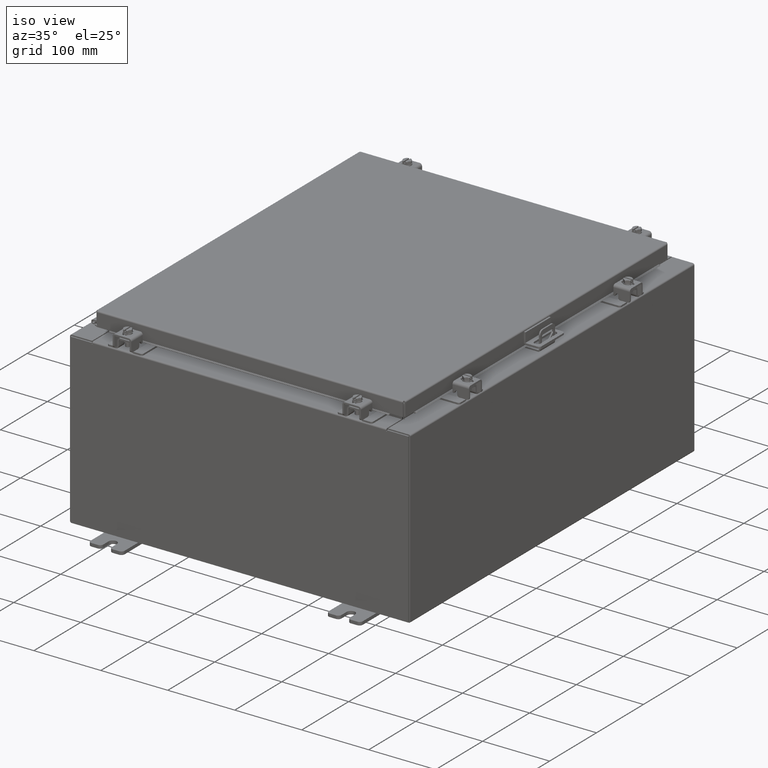
[diagram: clean part render]
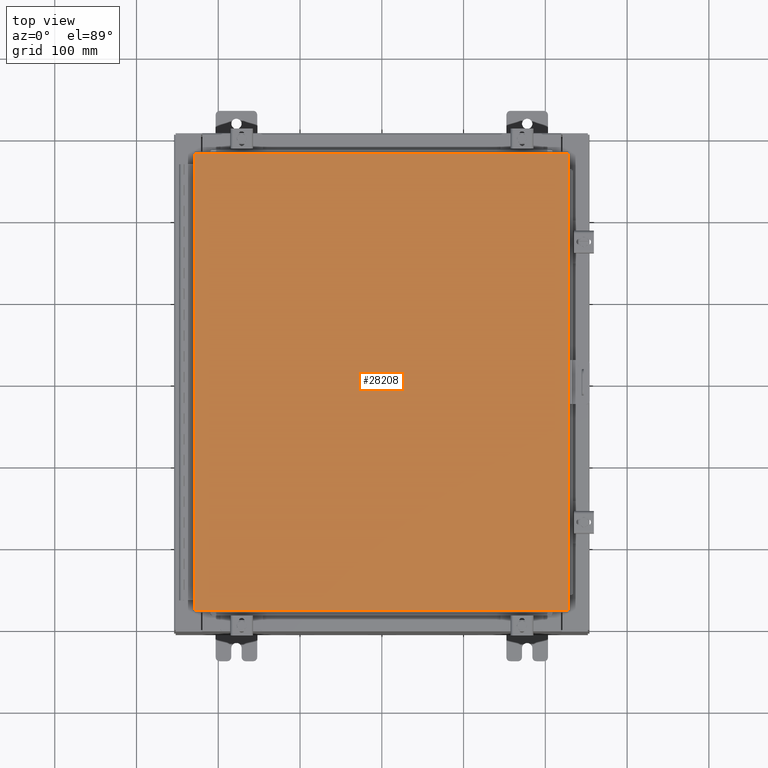
[diagram: tour spotlight — one face highlighted and labeled with its STEP entity id]
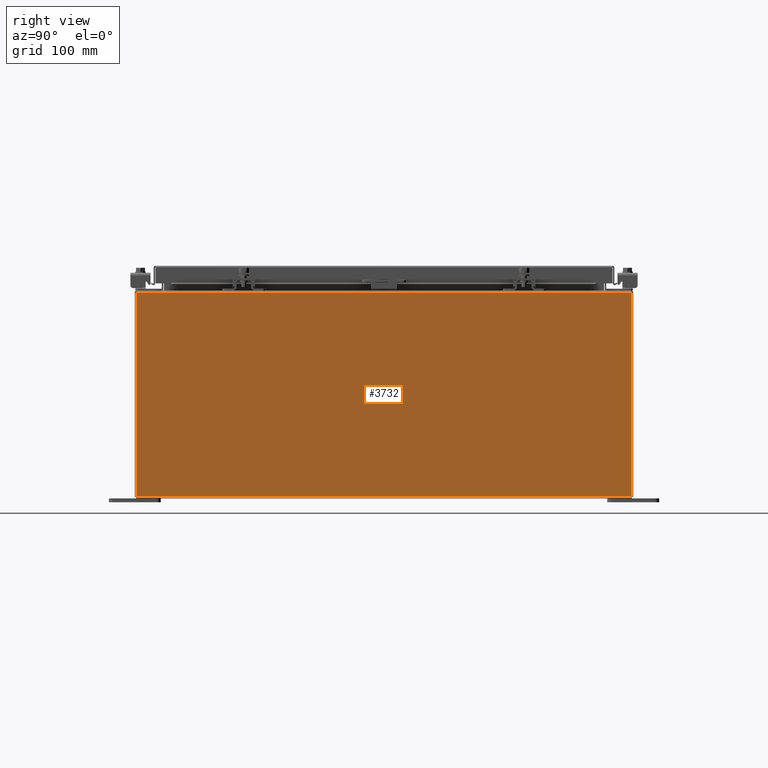
[diagram: tour spotlight — one face highlighted and labeled with its STEP entity id]
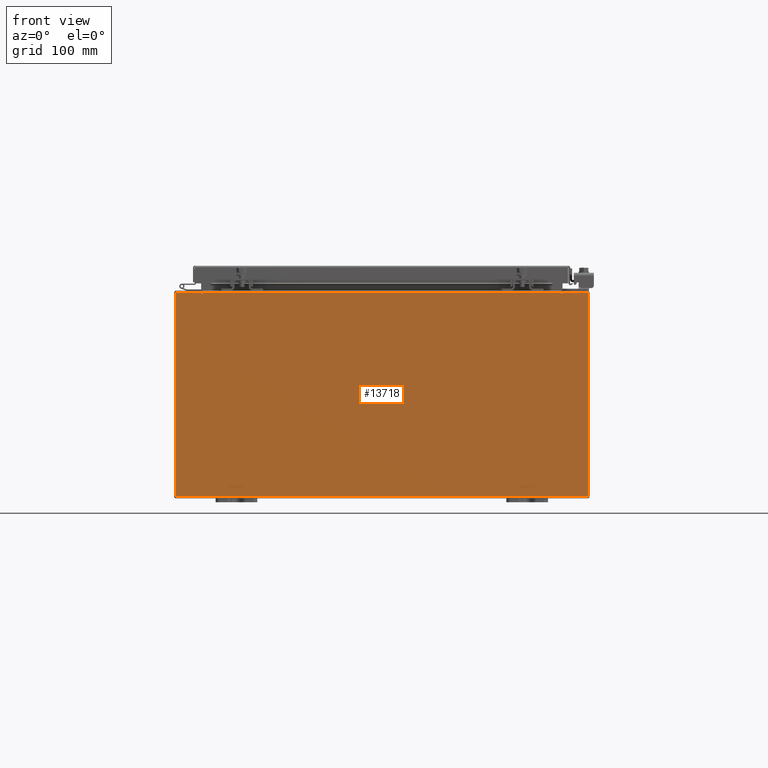
[diagram: tour spotlight — one face highlighted and labeled with its STEP entity id]
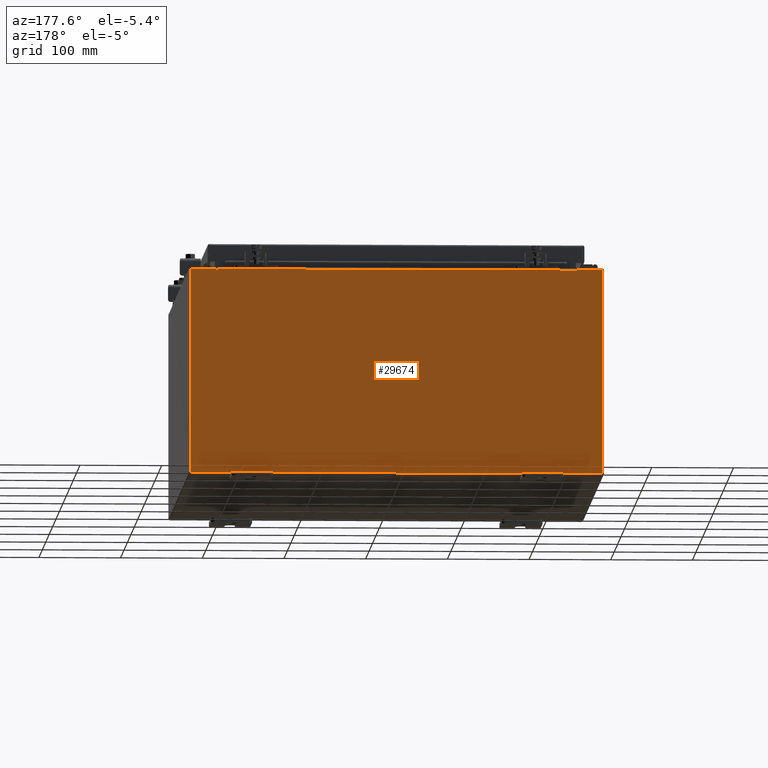
[diagram: tour spotlight — one face highlighted and labeled with its STEP entity id]
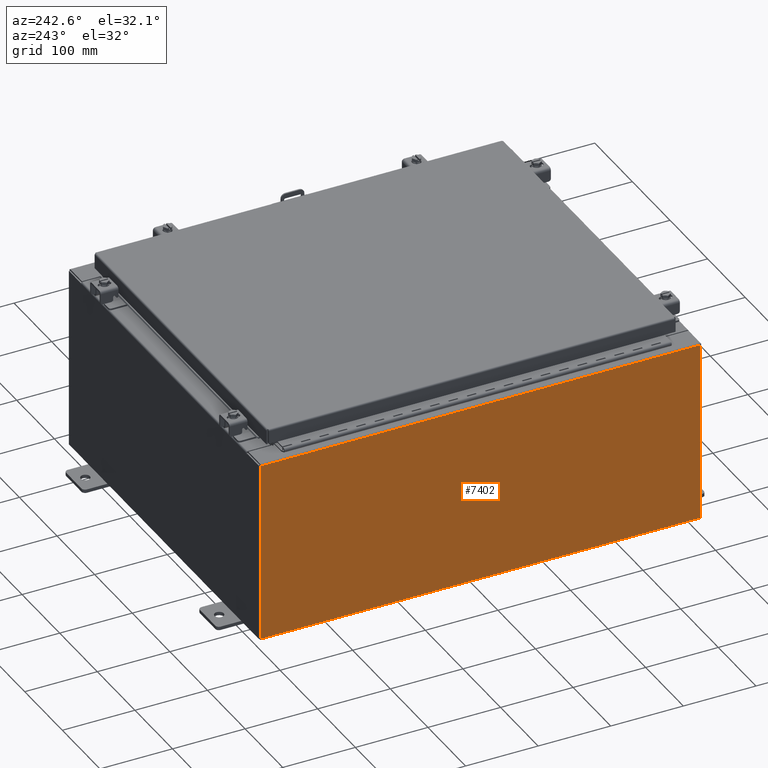
[diagram: tour spotlight — one face highlighted and labeled with its STEP entity id]
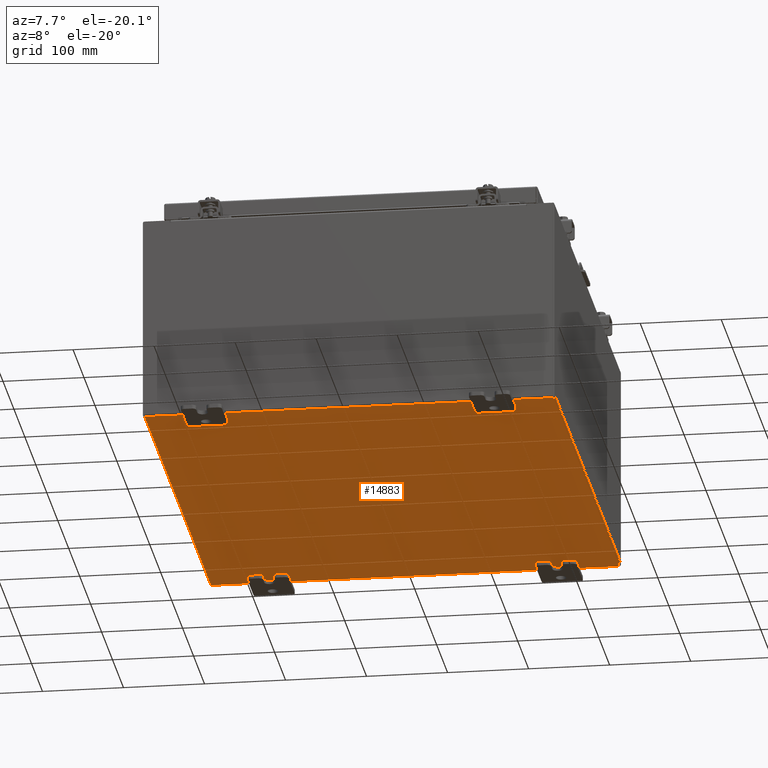
[diagram: tour spotlight — one face highlighted and labeled with its STEP entity id]
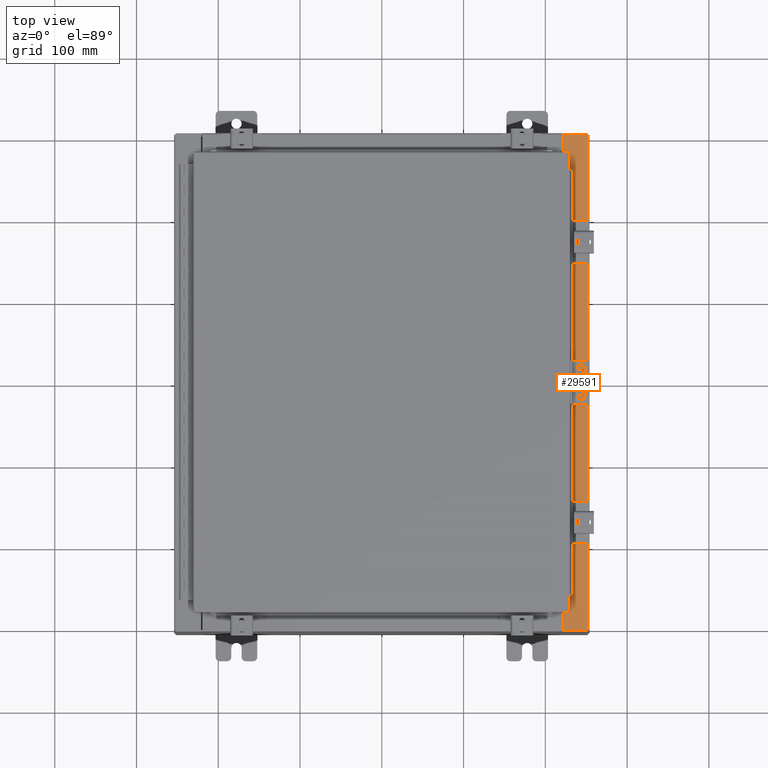
[diagram: tour spotlight — one face highlighted and labeled with its STEP entity id]
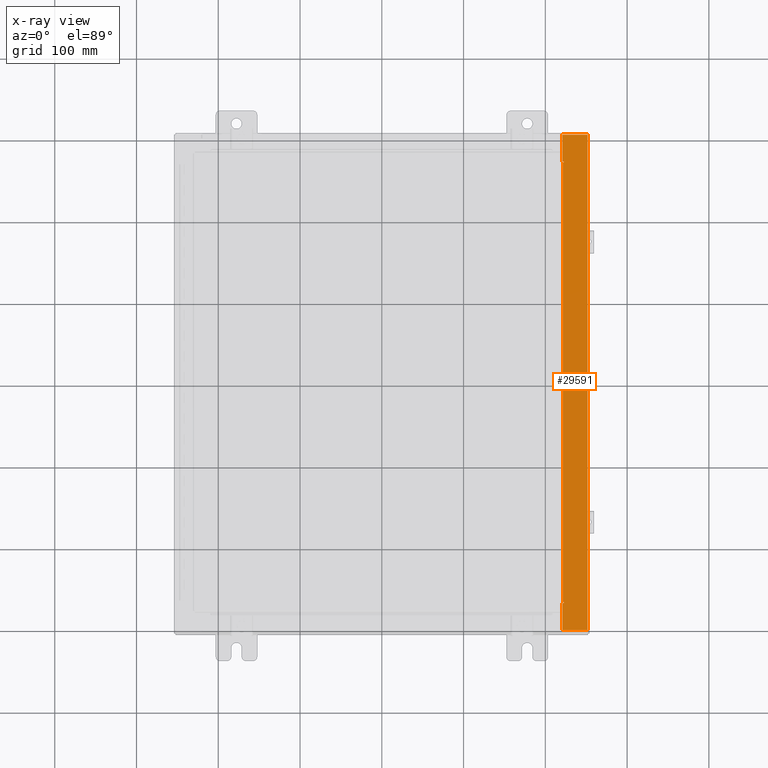
[diagram: x-ray of the same camera — body ghosted, this tour face saturated]
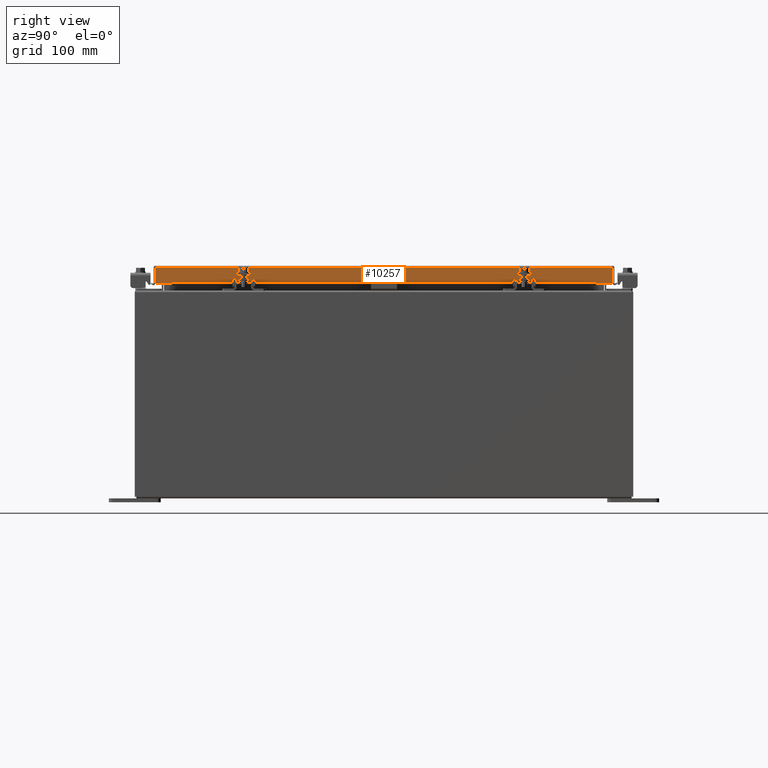
[diagram: tour spotlight — one face highlighted and labeled with its STEP entity id]
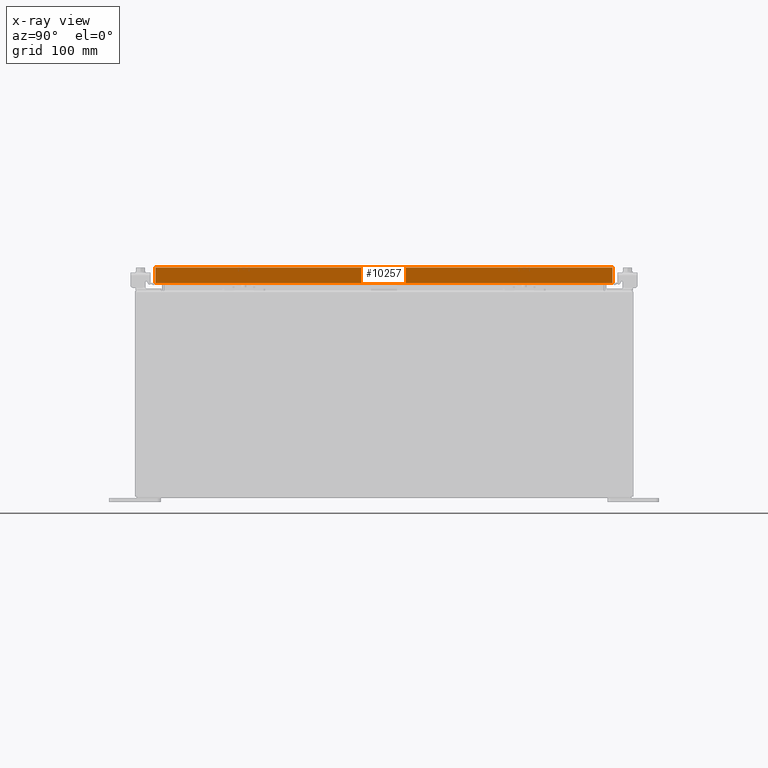
[diagram: x-ray of the same camera — body ghosted, this tour face saturated]
A machine part: a face-by-face anatomy tour. The part has 1735 B-rep faces; the first image is the clean iso view, then the 8 largest visible faces are spotlighted one at a time (largest first), each with its STEP entity span.

Face 1 — top view, entity #28208. In plain terms, the highlighted planar face has unit normal (0, 0, -1).
Definition (entity closure, byte-faithful):
#773 = CARTESIAN_POINT ( 'NONE',  ( 0.0000000000000000000, 0.0000000000000000000, 0.0000000000000000000 ) ) ;
#895 = EDGE_CURVE ( 'NONE', #29406, #4775, #2001, .T. ) ;
#949 = LINE ( 'NONE', #12635, #19670 ) ;
#988 = DIRECTION ( 'NONE',  ( 0.0000000000000000000, -1.000000000000000000, 0.0000000000000000000 ) ) ;
#2001 = LINE ( 'NONE', #29381, #28297 ) ;
#2133 = VERTEX_POINT ( 'NONE', #15925 ) ;
#2483 = DIRECTION ( 'NONE',  ( 1.000000000000000000, -0.0000000000000000000, -0.0000000000000000000 ) ) ;
#2542 = CARTESIAN_POINT ( 'NONE',  ( 8.990299999999999500, 11.00630000000000000, 0.0000000000000000000 ) ) ;
#3321 = PLANE ( 'NONE',  #28322 ) ;
#4775 = VERTEX_POINT ( 'NONE', #26533 ) ;
#5117 = VECTOR ( 'NONE', #8028, 39.37007874015748100 ) ;
#8028 = DIRECTION ( 'NONE',  ( 0.0000000000000000000, 1.000000000000000000, 0.0000000000000000000 ) ) ;
#8452 = DIRECTION ( 'NONE',  ( -1.000000000000000000, 0.0000000000000000000, -0.0000000000000000000 ) ) ;
#9262 = FACE_OUTER_BOUND ( 'NONE', #22044, .T. ) ;
#11309 = VECTOR ( 'NONE', #988, 39.37007874015748100 ) ;
#12635 = CARTESIAN_POINT ( 'NONE',  ( -8.990300000000001300, -11.00630000000000100, 0.0000000000000000000 ) ) ;
#12837 = EDGE_CURVE ( 'NONE', #2133, #29406, #25385, .T. ) ;
#13142 = CARTESIAN_POINT ( 'NONE',  ( 8.990299999999997700, -11.00630000000000000, 0.0000000000000000000 ) ) ;
#15925 = CARTESIAN_POINT ( 'NONE',  ( 8.990299999999997700, -11.00630000000000000, 0.0000000000000000000 ) ) ;
#18603 = VERTEX_POINT ( 'NONE', #18774 ) ;
#18663 = ORIENTED_EDGE ( 'NONE', *, *, #895, .T. ) ;
#18774 = CARTESIAN_POINT ( 'NONE',  ( -8.990300000000001300, -11.00630000000000100, 0.0000000000000000000 ) ) ;
#19277 = DIRECTION ( 'NONE',  ( -1.000000000000000000, -0.0000000000000000000, -0.0000000000000000000 ) ) ;
#19670 = VECTOR ( 'NONE', #2483, 39.37007874015748100 ) ;
#22044 = EDGE_LOOP ( 'NONE', ( #29290, #30253, #18663, #29386 ) ) ;
#23652 = DIRECTION ( 'NONE',  ( 0.0000000000000000000, 0.0000000000000000000, -1.000000000000000000 ) ) ;
#25371 = EDGE_CURVE ( 'NONE', #4775, #18603, #31582, .T. ) ;
#25385 = LINE ( 'NONE', #13142, #5117 ) ;
#26533 = CARTESIAN_POINT ( 'NONE',  ( -8.990299999999999500, 11.00630000000000100, 0.0000000000000000000 ) ) ;
#27301 = EDGE_CURVE ( 'NONE', #18603, #2133, #949, .T. ) ;
#28208 = ADVANCED_FACE ( 'NONE', ( #9262 ), #3321, .F. ) ;
#28297 = VECTOR ( 'NONE', #19277, 39.37007874015748100 ) ;
#28322 = AXIS2_PLACEMENT_3D ( 'NONE', #773, #23652, #8452 ) ;
#29290 = ORIENTED_EDGE ( 'NONE', *, *, #27301, .T. ) ;
#29381 = CARTESIAN_POINT ( 'NONE',  ( 8.990299999999999500, 11.00630000000000000, 0.0000000000000000000 ) ) ;
#29386 = ORIENTED_EDGE ( 'NONE', *, *, #25371, .T. ) ;
#29406 = VERTEX_POINT ( 'NONE', #2542 ) ;
#30253 = ORIENTED_EDGE ( 'NONE', *, *, #12837, .T. ) ;
#31452 = CARTESIAN_POINT ( 'NONE',  ( -8.990299999999999500, 11.00630000000000100, 0.0000000000000000000 ) ) ;
#31582 = LINE ( 'NONE', #31452, #11309 ) ;

Face 2 — right view, entity #3732. In plain terms, the highlighted planar face has unit normal (-1, 0, 0).
Definition (entity closure, byte-faithful):
#248 = CARTESIAN_POINT ( 'NONE',  ( 10.00000000000000000, -11.92530000000000000, 0.01299999999999985200 ) ) ;
#268 = VERTEX_POINT ( 'NONE', #18538 ) ;
#307 = LINE ( 'NONE', #16779, #6291 ) ;
#2139 = VERTEX_POINT ( 'NONE', #3215 ) ;
#2440 = ORIENTED_EDGE ( 'NONE', *, *, #23177, .F. ) ;
#3215 = CARTESIAN_POINT ( 'NONE',  ( 10.00000000000000000, -11.92530000000000000, 0.01299999999999984300 ) ) ;
#3670 = DIRECTION ( 'NONE',  ( 3.523082860860888200E-015, -2.201926788038055100E-016, 1.000000000000000000 ) ) ;
#3732 = ADVANCED_FACE ( 'NONE', ( #25437 ), #11811, .F. ) ;
#4240 = DIRECTION ( 'NONE',  ( -1.000000000000000000, 0.0000000000000000000, 3.523082860860887800E-015 ) ) ;
#4702 = VERTEX_POINT ( 'NONE', #8541 ) ;
#4881 = EDGE_CURVE ( 'NONE', #10105, #2139, #307, .T. ) ;
#6291 = VECTOR ( 'NONE', #6646, 39.37007874015748100 ) ;
#6646 = DIRECTION ( 'NONE',  ( -3.523082860860888200E-015, 0.0000000000000000000, -1.000000000000000000 ) ) ;
#8541 = CARTESIAN_POINT ( 'NONE',  ( 10.00000000000003600, 11.92529999999999800, 9.837599999999994800 ) ) ;
#9213 = AXIS2_PLACEMENT_3D ( 'NONE', #21502, #4240, #22047 ) ;
#9772 = LINE ( 'NONE', #248, #16575 ) ;
#10105 = VERTEX_POINT ( 'NONE', #10742 ) ;
#10742 = CARTESIAN_POINT ( 'NONE',  ( 10.00000000000003600, -11.92530000000000000, 9.837600000000001900 ) ) ;
#11811 = PLANE ( 'NONE',  #9213 ) ;
#13015 = EDGE_CURVE ( 'NONE', #268, #4702, #14658, .T. ) ;
#13726 = DIRECTION ( 'NONE',  ( -0.0000000000000000000, -1.000000000000000000, -0.0000000000000000000 ) ) ;
#14001 = VECTOR ( 'NONE', #13726, 39.37007874015748100 ) ;
#14658 = LINE ( 'NONE', #18935, #20650 ) ;
#16575 = VECTOR ( 'NONE', #28177, 39.37007874015748100 ) ;
#16779 = CARTESIAN_POINT ( 'NONE',  ( 10.00000000000000000, -11.92530000000000000, -3.549694986767502100E-014 ) ) ;
#18538 = CARTESIAN_POINT ( 'NONE',  ( 10.00000000000000000, 11.92529999999999800, 0.01299999999999985200 ) ) ;
#18860 = CARTESIAN_POINT ( 'NONE',  ( 10.00000000000003600, 11.92530000000000000, 9.837599999999994800 ) ) ;
#18935 = CARTESIAN_POINT ( 'NONE',  ( 10.00000000000000000, 11.92530000000000000, -3.286754617377316700E-014 ) ) ;
#19166 = EDGE_CURVE ( 'NONE', #4702, #10105, #27528, .T. ) ;
#20650 = VECTOR ( 'NONE', #3670, 39.37007874015748100 ) ;
#21502 = CARTESIAN_POINT ( 'NONE',  ( 10.00000000000000000, 0.0000000000000000000, -3.549694986767502100E-014 ) ) ;
#22047 = DIRECTION ( 'NONE',  ( 3.523082860860887800E-015, 0.0000000000000000000, 1.000000000000000000 ) ) ;
#22200 = ORIENTED_EDGE ( 'NONE', *, *, #13015, .T. ) ;
#23177 = EDGE_CURVE ( 'NONE', #268, #2139, #9772, .T. ) ;
#25437 = FACE_OUTER_BOUND ( 'NONE', #29511, .T. ) ;
#27528 = LINE ( 'NONE', #18860, #14001 ) ;
#27996 = ORIENTED_EDGE ( 'NONE', *, *, #4881, .T. ) ;
#28177 = DIRECTION ( 'NONE',  ( -0.0000000000000000000, -1.000000000000000000, -0.0000000000000000000 ) ) ;
#29511 = EDGE_LOOP ( 'NONE', ( #31404, #27996, #2440, #22200 ) ) ;
#31404 = ORIENTED_EDGE ( 'NONE', *, *, #19166, .T. ) ;

Face 3 — front view, entity #13718. In plain terms, the highlighted planar face has unit normal (0, 1, -0).
Definition (entity closure, byte-faithful):
#117 = DIRECTION ( 'NONE',  ( -8.326672684688674100E-016, 1.677591767810434500E-016, -1.000000000000000000 ) ) ;
#170 = CARTESIAN_POINT ( 'NONE',  ( 8.637200000000000000, 0.0000000000000000000, 4.912300000000006300 ) ) ;
#1835 = CARTESIAN_POINT ( 'NONE',  ( -8.655874999999996400, 0.0000000000000000000, 4.874949999999993900 ) ) ;
#1896 = EDGE_CURVE ( 'NONE', #32131, #22607, #7139, .T. ) ;
#2091 = LINE ( 'NONE', #30351, #8085 ) ;
#2325 = EDGE_CURVE ( 'NONE', #20179, #26187, #16414, .T. ) ;
#3021 = CARTESIAN_POINT ( 'NONE',  ( 9.925300000000000000, 0.0000000000000000000, 4.925300000000010700 ) ) ;
#3217 = EDGE_CURVE ( 'NONE', #27956, #3863, #27104, .T. ) ;
#3740 = DIRECTION ( 'NONE',  ( -2.688223102148531000E-016, -1.000000000000000000, -1.677591767810432300E-016 ) ) ;
#3863 = VERTEX_POINT ( 'NONE', #9888 ) ;
#4399 = DIRECTION ( 'NONE',  ( 0.0000000000000000000, 1.677591767810434800E-016, -1.000000000000000000 ) ) ;
#4995 = CARTESIAN_POINT ( 'NONE',  ( 8.655875000000000000, 0.0000000000000000000, 4.874950000000004600 ) ) ;
#5384 = EDGE_CURVE ( 'NONE', #25169, #3863, #23556, .T. ) ;
#5602 = EDGE_LOOP ( 'NONE', ( #25767, #10439, #17892, #6309, #19069, #30958, #24983, #29367, #16386, #26686, #16473, #23040 ) ) ;
#6228 = CARTESIAN_POINT ( 'NONE',  ( 8.674550000000000000, 0.0000000000000000000, 4.874950000000009900 ) ) ;
#6309 = ORIENTED_EDGE ( 'NONE', *, *, #19748, .T. ) ;
#6951 = DIRECTION ( 'NONE',  ( -6.594125897446894100E-014, 1.677591767810259200E-016, -1.000000000000000000 ) ) ;
#7139 = LINE ( 'NONE', #22578, #15652 ) ;
#7269 = VERTEX_POINT ( 'NONE', #24762 ) ;
#7564 = DIRECTION ( 'NONE',  ( 0.0000000000000000000, 1.677591767810434800E-016, -1.000000000000000000 ) ) ;
#8085 = VECTOR ( 'NONE', #117, 39.37007874015748100 ) ;
#8183 = VECTOR ( 'NONE', #29041, 39.37007874015748100 ) ;
#8846 = VECTOR ( 'NONE', #32592, 39.37007874015748100 ) ;
#8999 = CARTESIAN_POINT ( 'NONE',  ( -9.925300000000000000, 0.0000000000000000000, 4.925300000000000000 ) ) ;
#9625 = VECTOR ( 'NONE', #31890, 39.37007874015748100 ) ;
#9888 = CARTESIAN_POINT ( 'NONE',  ( -8.674549999999991100, 0.0000000000000000000, 4.925300000000000000 ) ) ;
#10439 = ORIENTED_EDGE ( 'NONE', *, *, #21786, .F. ) ;
#11057 = DIRECTION ( 'NONE',  ( 8.326672684688674100E-016, -1.677591767810434500E-016, 1.000000000000000000 ) ) ;
#11331 = VERTEX_POINT ( 'NONE', #16503 ) ;
#12309 = LINE ( 'NONE', #23115, #17485 ) ;
#13718 = ADVANCED_FACE ( 'NONE', ( #21788 ), #31644, .F. ) ;
#14031 = LINE ( 'NONE', #32805, #14837 ) ;
#14829 = CARTESIAN_POINT ( 'NONE',  ( -9.925300000000010700, 0.0000000000000000000, -4.925300000000005300 ) ) ;
#14837 = VECTOR ( 'NONE', #15046, 39.37007874015748100 ) ;
#15046 = DIRECTION ( 'NONE',  ( 8.326672684688674100E-016, -1.677591767810434500E-016, 1.000000000000000000 ) ) ;
#15103 = AXIS2_PLACEMENT_3D ( 'NONE', #4995, #22770, #7564 ) ;
#15243 = VECTOR ( 'NONE', #11057, 39.37007874015748100 ) ;
#15405 = EDGE_CURVE ( 'NONE', #15793, #32131, #29623, .T. ) ;
#15639 = LINE ( 'NONE', #14829, #8846 ) ;
#15652 = VECTOR ( 'NONE', #17489, 39.37007874015748100 ) ;
#15793 = VERTEX_POINT ( 'NONE', #6228 ) ;
#16386 = ORIENTED_EDGE ( 'NONE', *, *, #32692, .T. ) ;
#16414 = LINE ( 'NONE', #8999, #9625 ) ;
#16473 = ORIENTED_EDGE ( 'NONE', *, *, #22543, .T. ) ;
#16503 = CARTESIAN_POINT ( 'NONE',  ( -8.637199999999996400, 0.0000000000000000000, 4.874949999999993900 ) ) ;
#17485 = VECTOR ( 'NONE', #20604, 39.37007874015748100 ) ;
#17489 = DIRECTION ( 'NONE',  ( 8.326672684688674100E-016, -1.677591767810434500E-016, 1.000000000000000000 ) ) ;
#17707 = CARTESIAN_POINT ( 'NONE',  ( -9.925300000000000000, 0.0000000000000000000, 4.925300000000000000 ) ) ;
#17892 = ORIENTED_EDGE ( 'NONE', *, *, #28029, .F. ) ;
#18891 = EDGE_CURVE ( 'NONE', #20179, #15793, #22750, .T. ) ;
#19069 = ORIENTED_EDGE ( 'NONE', *, *, #1896, .F. ) ;
#19650 = DIRECTION ( 'NONE',  ( 2.688223102148528000E-016, 1.000000000000000000, -1.677591767810434000E-016 ) ) ;
#19748 = EDGE_CURVE ( 'NONE', #31871, #22607, #28478, .T. ) ;
#20179 = VERTEX_POINT ( 'NONE', #22449 ) ;
#20604 = DIRECTION ( 'NONE',  ( -8.326672684688674100E-016, 1.677591767810434500E-016, -1.000000000000000000 ) ) ;
#21554 = DIRECTION ( 'NONE',  ( -8.326672684688674100E-016, 1.677591767810434500E-016, -1.000000000000000000 ) ) ;
#21786 = EDGE_CURVE ( 'NONE', #11331, #25169, #29596, .T. ) ;
#21788 = FACE_OUTER_BOUND ( 'NONE', #5602, .T. ) ;
#21983 = VECTOR ( 'NONE', #6951, 39.37007874015748100 ) ;
#22449 = CARTESIAN_POINT ( 'NONE',  ( 8.674550000000007100, 0.0000000000000000000, 4.925300000000010700 ) ) ;
#22482 = EDGE_CURVE ( 'NONE', #7269, #22606, #15639, .T. ) ;
#22543 = EDGE_CURVE ( 'NONE', #22606, #27956, #14031, .T. ) ;
#22578 = CARTESIAN_POINT ( 'NONE',  ( 8.637199999999994700, 0.0000000000000000000, 8.195543980992789300E-015 ) ) ;
#22606 = VERTEX_POINT ( 'NONE', #30620 ) ;
#22607 = VERTEX_POINT ( 'NONE', #170 ) ;
#22750 = LINE ( 'NONE', #27319, #21983 ) ;
#22770 = DIRECTION ( 'NONE',  ( 2.688223102148528000E-016, 1.000000000000000000, -1.677591767810434000E-016 ) ) ;
#23040 = ORIENTED_EDGE ( 'NONE', *, *, #3217, .T. ) ;
#23115 = CARTESIAN_POINT ( 'NONE',  ( 9.925300000000000000, 0.0000000000000000000, 4.925300000000010700 ) ) ;
#23218 = CARTESIAN_POINT ( 'NONE',  ( 8.637200000000000000, 0.0000000000000000000, 4.874950000000004600 ) ) ;
#23556 = LINE ( 'NONE', #31389, #15243 ) ;
#24295 = AXIS2_PLACEMENT_3D ( 'NONE', #1835, #19650, #4399 ) ;
#24762 = CARTESIAN_POINT ( 'NONE',  ( 9.925299999999989400, 0.0000000000000000000, -4.925299999999994700 ) ) ;
#24983 = ORIENTED_EDGE ( 'NONE', *, *, #18891, .F. ) ;
#25169 = VERTEX_POINT ( 'NONE', #30574 ) ;
#25470 = VECTOR ( 'NONE', #29955, 39.37007874015748100 ) ;
#25767 = ORIENTED_EDGE ( 'NONE', *, *, #5384, .F. ) ;
#26187 = VERTEX_POINT ( 'NONE', #3021 ) ;
#26467 = CARTESIAN_POINT ( 'NONE',  ( -8.637200000000000000, -2.185478394931410600E-015, 4.912299999999994800 ) ) ;
#26532 = CARTESIAN_POINT ( 'NONE',  ( 0.0000000000000000000, 0.0000000000000000000, 0.0000000000000000000 ) ) ;
#26686 = ORIENTED_EDGE ( 'NONE', *, *, #22482, .T. ) ;
#27104 = LINE ( 'NONE', #32511, #25470 ) ;
#27319 = CARTESIAN_POINT ( 'NONE',  ( 8.674549999999678500, 0.0000000000000000000, -5.567506211087768800E-013 ) ) ;
#27956 = VERTEX_POINT ( 'NONE', #17707 ) ;
#28029 = EDGE_CURVE ( 'NONE', #31871, #11331, #2091, .T. ) ;
#28478 = LINE ( 'NONE', #26467, #8183 ) ;
#29041 = DIRECTION ( 'NONE',  ( 1.000000000000000000, 2.688223102148527500E-016, 8.326672684688674100E-016 ) ) ;
#29367 = ORIENTED_EDGE ( 'NONE', *, *, #2325, .T. ) ;
#29596 = CIRCLE ( 'NONE', #24295, 0.01867500000000003900 ) ;
#29623 = CIRCLE ( 'NONE', #15103, 0.01867500000000003900 ) ;
#29668 = AXIS2_PLACEMENT_3D ( 'NONE', #26532, #3740, #21554 ) ;
#29955 = DIRECTION ( 'NONE',  ( 1.000000000000000000, 2.688223102148527500E-016, 8.326672684688674100E-016 ) ) ;
#30351 = CARTESIAN_POINT ( 'NONE',  ( -8.637200000000001800, 0.0000000000000000000, -5.463695987328526400E-015 ) ) ;
#30574 = CARTESIAN_POINT ( 'NONE',  ( -8.674549999999996400, 0.0000000000000000000, 4.874949999999993900 ) ) ;
#30620 = CARTESIAN_POINT ( 'NONE',  ( -9.925300000000010700, 0.0000000000000000000, -4.925300000000005300 ) ) ;
#30958 = ORIENTED_EDGE ( 'NONE', *, *, #15405, .F. ) ;
#31389 = CARTESIAN_POINT ( 'NONE',  ( -8.674550000000003500, 0.0000000000000000000, -5.463695987328526400E-015 ) ) ;
#31644 = PLANE ( 'NONE',  #29668 ) ;
#31871 = VERTEX_POINT ( 'NONE', #32134 ) ;
#31890 = DIRECTION ( 'NONE',  ( 1.000000000000000000, 2.688223102148527500E-016, 8.326672684688674100E-016 ) ) ;
#32131 = VERTEX_POINT ( 'NONE', #23218 ) ;
#32134 = CARTESIAN_POINT ( 'NONE',  ( -8.637199999999996400, -2.185478394931410600E-015, 4.912299999999994800 ) ) ;
#32511 = CARTESIAN_POINT ( 'NONE',  ( -9.925300000000000000, 0.0000000000000000000, 4.925300000000000000 ) ) ;
#32592 = DIRECTION ( 'NONE',  ( -1.000000000000000000, -2.688223102148527500E-016, -8.326672684688674100E-016 ) ) ;
#32692 = EDGE_CURVE ( 'NONE', #26187, #7269, #12309, .T. ) ;
#32805 = CARTESIAN_POINT ( 'NONE',  ( -9.925300000000000000, 0.0000000000000000000, 4.925300000000000000 ) ) ;

Face 4 — auxiliary view, entity #29674. In plain terms, the highlighted planar face has unit normal (0, -1, 0).
Definition (entity closure, byte-faithful):
#462 = LINE ( 'NONE', #22107, #25925 ) ;
#965 = VERTEX_POINT ( 'NONE', #27052 ) ;
#1185 = ORIENTED_EDGE ( 'NONE', *, *, #31905, .T. ) ;
#1297 = CIRCLE ( 'NONE', #24053, 0.01867500000000003900 ) ;
#1547 = ORIENTED_EDGE ( 'NONE', *, *, #10913, .F. ) ;
#1775 = CARTESIAN_POINT ( 'NONE',  ( -9.925300000000000000, 0.0000000000000000000, -4.925300000000000000 ) ) ;
#1969 = AXIS2_PLACEMENT_3D ( 'NONE', #7374, #25131, #9895 ) ;
#2471 = EDGE_CURVE ( 'NONE', #19155, #24546, #462, .T. ) ;
#2533 = VERTEX_POINT ( 'NONE', #24987 ) ;
#2587 = LINE ( 'NONE', #8259, #28063 ) ;
#2649 = VERTEX_POINT ( 'NONE', #20226 ) ;
#2690 = ORIENTED_EDGE ( 'NONE', *, *, #14921, .T. ) ;
#2918 = CARTESIAN_POINT ( 'NONE',  ( -8.637199999999996400, 0.0000000000000000000, 4.874950000000000100 ) ) ;
#2920 = LINE ( 'NONE', #3468, #28408 ) ;
#3468 = CARTESIAN_POINT ( 'NONE',  ( -8.674549999999996400, 0.0000000000000000000, 0.0000000000000000000 ) ) ;
#3686 = DIRECTION ( 'NONE',  ( -0.0000000000000000000, 1.000000000000000000, -0.0000000000000000000 ) ) ;
#3966 = CARTESIAN_POINT ( 'NONE',  ( -9.925300000000000000, 0.0000000000000000000, 4.925300000000000000 ) ) ;
#4873 = EDGE_CURVE ( 'NONE', #17352, #28808, #13851, .T. ) ;
#5019 = ORIENTED_EDGE ( 'NONE', *, *, #4873, .T. ) ;
#6106 = DIRECTION ( 'NONE',  ( 0.0000000000000000000, 0.0000000000000000000, -1.000000000000000000 ) ) ;
#6490 = CARTESIAN_POINT ( 'NONE',  ( 9.925300000000000000, 0.0000000000000000000, 4.925300000000000000 ) ) ;
#6655 = ORIENTED_EDGE ( 'NONE', *, *, #19260, .T. ) ;
#7374 = CARTESIAN_POINT ( 'NONE',  ( 8.655875000000000000, 0.0000000000000000000, 4.874950000000000100 ) ) ;
#7580 = LINE ( 'NONE', #1775, #32232 ) ;
#8259 = CARTESIAN_POINT ( 'NONE',  ( -8.637200000000000000, 0.0000000000000000000, 4.912299999999999200 ) ) ;
#8853 = ORIENTED_EDGE ( 'NONE', *, *, #24713, .F. ) ;
#9378 = CIRCLE ( 'NONE', #1969, 0.01867500000000003900 ) ;
#9895 = DIRECTION ( 'NONE',  ( 0.0000000000000000000, 0.0000000000000000000, -1.000000000000000000 ) ) ;
#10788 = CARTESIAN_POINT ( 'NONE',  ( 8.674550000000001800, 0.0000000000000000000, 4.925300000000000000 ) ) ;
#10800 = DIRECTION ( 'NONE',  ( 1.000000000000000000, 0.0000000000000000000, 0.0000000000000000000 ) ) ;
#10913 = EDGE_CURVE ( 'NONE', #19125, #10998, #1297, .T. ) ;
#10998 = VERTEX_POINT ( 'NONE', #21607 ) ;
#11435 = PLANE ( 'NONE',  #17574 ) ;
#11617 = CARTESIAN_POINT ( 'NONE',  ( -9.925300000000000000, 0.0000000000000000000, 4.925300000000000000 ) ) ;
#12356 = ORIENTED_EDGE ( 'NONE', *, *, #14468, .T. ) ;
#13370 = VECTOR ( 'NONE', #24262, 39.37007874015748100 ) ;
#13851 = LINE ( 'NONE', #3966, #19823 ) ;
#13991 = DIRECTION ( 'NONE',  ( 0.0000000000000000000, -1.000000000000000000, 0.0000000000000000000 ) ) ;
#14210 = DIRECTION ( 'NONE',  ( 1.000000000000000000, 0.0000000000000000000, 0.0000000000000000000 ) ) ;
#14468 = EDGE_CURVE ( 'NONE', #2649, #19155, #21338, .T. ) ;
#14544 = DIRECTION ( 'NONE',  ( 0.0000000000000000000, 0.0000000000000000000, 1.000000000000000000 ) ) ;
#14921 = EDGE_CURVE ( 'NONE', #2533, #965, #2587, .T. ) ;
#15375 = VECTOR ( 'NONE', #29408, 39.37007874015748100 ) ;
#15675 = VERTEX_POINT ( 'NONE', #31004 ) ;
#16514 = VECTOR ( 'NONE', #6106, 39.37007874015748100 ) ;
#17328 = ORIENTED_EDGE ( 'NONE', *, *, #2471, .T. ) ;
#17352 = VERTEX_POINT ( 'NONE', #10788 ) ;
#17574 = AXIS2_PLACEMENT_3D ( 'NONE', #31654, #13991, #31772 ) ;
#17580 = EDGE_CURVE ( 'NONE', #17352, #23625, #22007, .T. ) ;
#17734 = VECTOR ( 'NONE', #14544, 39.37007874015748100 ) ;
#18946 = CARTESIAN_POINT ( 'NONE',  ( -8.655874999999996400, 0.0000000000000000000, 4.874950000000000100 ) ) ;
#19125 = VERTEX_POINT ( 'NONE', #2918 ) ;
#19155 = VERTEX_POINT ( 'NONE', #28963 ) ;
#19260 = EDGE_CURVE ( 'NONE', #28808, #15675, #20152, .T. ) ;
#19440 = EDGE_CURVE ( 'NONE', #23625, #22380, #9378, .T. ) ;
#19823 = VECTOR ( 'NONE', #14210, 39.37007874015748100 ) ;
#20152 = LINE ( 'NONE', #6490, #13370 ) ;
#20226 = CARTESIAN_POINT ( 'NONE',  ( -9.925300000000000000, 0.0000000000000000000, -4.925300000000000000 ) ) ;
#20682 = EDGE_CURVE ( 'NONE', #22380, #965, #31241, .T. ) ;
#21287 = ORIENTED_EDGE ( 'NONE', *, *, #19440, .F. ) ;
#21330 = CARTESIAN_POINT ( 'NONE',  ( -8.637199999999996400, 0.0000000000000000000, 0.0000000000000000000 ) ) ;
#21338 = LINE ( 'NONE', #11617, #15375 ) ;
#21495 = DIRECTION ( 'NONE',  ( 0.0000000000000000000, 0.0000000000000000000, -1.000000000000000000 ) ) ;
#21607 = CARTESIAN_POINT ( 'NONE',  ( -8.674549999999996400, 0.0000000000000000000, 4.874950000000000100 ) ) ;
#21850 = ORIENTED_EDGE ( 'NONE', *, *, #17580, .F. ) ;
#22007 = LINE ( 'NONE', #26907, #22775 ) ;
#22107 = CARTESIAN_POINT ( 'NONE',  ( -9.925300000000000000, 0.0000000000000000000, 4.925300000000000000 ) ) ;
#22139 = DIRECTION ( 'NONE',  ( -1.000000000000000000, -0.0000000000000000000, -0.0000000000000000000 ) ) ;
#22183 = EDGE_LOOP ( 'NONE', ( #8853, #1547, #25674, #2690, #30401, #21287, #21850, #5019, #6655, #1185, #12356, #17328 ) ) ;
#22380 = VERTEX_POINT ( 'NONE', #29717 ) ;
#22694 = CARTESIAN_POINT ( 'NONE',  ( 9.925300000000000000, 0.0000000000000000000, 4.925300000000000000 ) ) ;
#22775 = VECTOR ( 'NONE', #29459, 39.37007874015748100 ) ;
#23243 = LINE ( 'NONE', #21330, #16514 ) ;
#23625 = VERTEX_POINT ( 'NONE', #32571 ) ;
#24053 = AXIS2_PLACEMENT_3D ( 'NONE', #18946, #3686, #21495 ) ;
#24193 = EDGE_CURVE ( 'NONE', #2533, #19125, #23243, .T. ) ;
#24262 = DIRECTION ( 'NONE',  ( 0.0000000000000000000, 0.0000000000000000000, -1.000000000000000000 ) ) ;
#24546 = VERTEX_POINT ( 'NONE', #25616 ) ;
#24713 = EDGE_CURVE ( 'NONE', #10998, #24546, #2920, .T. ) ;
#24987 = CARTESIAN_POINT ( 'NONE',  ( -8.637199999999996400, 0.0000000000000000000, 4.912299999999999200 ) ) ;
#25131 = DIRECTION ( 'NONE',  ( -0.0000000000000000000, 1.000000000000000000, -0.0000000000000000000 ) ) ;
#25616 = CARTESIAN_POINT ( 'NONE',  ( -8.674549999999996400, 0.0000000000000000000, 4.925300000000000000 ) ) ;
#25674 = ORIENTED_EDGE ( 'NONE', *, *, #24193, .F. ) ;
#25925 = VECTOR ( 'NONE', #27239, 39.37007874015748100 ) ;
#26380 = DIRECTION ( 'NONE',  ( 0.0000000000000000000, 0.0000000000000000000, 1.000000000000000000 ) ) ;
#26907 = CARTESIAN_POINT ( 'NONE',  ( 8.674549999999683800, 0.0000000000000000000, -5.649461650897696500E-013 ) ) ;
#27052 = CARTESIAN_POINT ( 'NONE',  ( 8.637200000000000000, 0.0000000000000000000, 4.912299999999999200 ) ) ;
#27239 = DIRECTION ( 'NONE',  ( 1.000000000000000000, 0.0000000000000000000, 0.0000000000000000000 ) ) ;
#28063 = VECTOR ( 'NONE', #10800, 39.37007874015748100 ) ;
#28408 = VECTOR ( 'NONE', #26380, 39.37007874015748100 ) ;
#28808 = VERTEX_POINT ( 'NONE', #22694 ) ;
#28963 = CARTESIAN_POINT ( 'NONE',  ( -9.925300000000000000, 0.0000000000000000000, 4.925300000000000000 ) ) ;
#29122 = FACE_OUTER_BOUND ( 'NONE', #22183, .T. ) ;
#29408 = DIRECTION ( 'NONE',  ( -0.0000000000000000000, -0.0000000000000000000, 1.000000000000000000 ) ) ;
#29459 = DIRECTION ( 'NONE',  ( -6.510859170600007400E-014, 0.0000000000000000000, -1.000000000000000000 ) ) ;
#29674 = ADVANCED_FACE ( 'NONE', ( #29122 ), #11435, .F. ) ;
#29717 = CARTESIAN_POINT ( 'NONE',  ( 8.637200000000000000, 0.0000000000000000000, 4.874950000000000100 ) ) ;
#29874 = CARTESIAN_POINT ( 'NONE',  ( 8.637200000000000000, 0.0000000000000000000, 0.0000000000000000000 ) ) ;
#30401 = ORIENTED_EDGE ( 'NONE', *, *, #20682, .F. ) ;
#31004 = CARTESIAN_POINT ( 'NONE',  ( 9.925300000000000000, 0.0000000000000000000, -4.925300000000000000 ) ) ;
#31241 = LINE ( 'NONE', #29874, #17734 ) ;
#31654 = CARTESIAN_POINT ( 'NONE',  ( 0.0000000000000000000, 0.0000000000000000000, 0.0000000000000000000 ) ) ;
#31772 = DIRECTION ( 'NONE',  ( 0.0000000000000000000, -0.0000000000000000000, -1.000000000000000000 ) ) ;
#31905 = EDGE_CURVE ( 'NONE', #15675, #2649, #7580, .T. ) ;
#32232 = VECTOR ( 'NONE', #22139, 39.37007874015748100 ) ;
#32571 = CARTESIAN_POINT ( 'NONE',  ( 8.674550000000000000, 0.0000000000000000000, 4.874950000000000100 ) ) ;

Face 5 — auxiliary view, entity #7402. In plain terms, the highlighted planar face has unit normal (1, 0, 0).
Definition (entity closure, byte-faithful):
#2409 = DIRECTION ( 'NONE',  ( 1.000000000000000000, 0.0000000000000000000, 3.523082860860887800E-015 ) ) ;
#3214 = VECTOR ( 'NONE', #22755, 39.37007874015748100 ) ;
#5507 = VERTEX_POINT ( 'NONE', #20225 ) ;
#6237 = EDGE_LOOP ( 'NONE', ( #19303, #23954, #24229, #10051 ) ) ;
#6525 = LINE ( 'NONE', #19289, #26813 ) ;
#6603 = DIRECTION ( 'NONE',  ( -0.0000000000000000000, 1.000000000000000000, -0.0000000000000000000 ) ) ;
#6611 = LINE ( 'NONE', #24372, #7415 ) ;
#7215 = CARTESIAN_POINT ( 'NONE',  ( -10.00000000000000000, 11.92530000000000000, -3.549694986767502100E-014 ) ) ;
#7402 = ADVANCED_FACE ( 'NONE', ( #27042 ), #12554, .F. ) ;
#7415 = VECTOR ( 'NONE', #6603, 39.37007874015748100 ) ;
#9157 = CARTESIAN_POINT ( 'NONE',  ( -10.00000000000003600, 11.92530000000000000, 9.837599999999998300 ) ) ;
#9758 = DIRECTION ( 'NONE',  ( 3.523082860860888200E-015, 0.0000000000000000000, -1.000000000000000000 ) ) ;
#10051 = ORIENTED_EDGE ( 'NONE', *, *, #12091, .T. ) ;
#10227 = CARTESIAN_POINT ( 'NONE',  ( -10.00000000000000000, 11.92530000000000000, 0.01299999999999984300 ) ) ;
#11849 = AXIS2_PLACEMENT_3D ( 'NONE', #17673, #2409, #20229 ) ;
#12091 = EDGE_CURVE ( 'NONE', #19296, #5507, #22706, .T. ) ;
#12554 = PLANE ( 'NONE',  #11849 ) ;
#15630 = VECTOR ( 'NONE', #9758, 39.37007874015748100 ) ;
#16942 = EDGE_CURVE ( 'NONE', #5507, #16971, #6525, .T. ) ;
#16971 = VERTEX_POINT ( 'NONE', #9157 ) ;
#17673 = CARTESIAN_POINT ( 'NONE',  ( -10.00000000000000000, 0.0000000000000000000, -3.549694986767502100E-014 ) ) ;
#19285 = EDGE_CURVE ( 'NONE', #19296, #25163, #6611, .T. ) ;
#19289 = CARTESIAN_POINT ( 'NONE',  ( -10.00000000000003600, -11.92530000000000000, 9.837599999999998300 ) ) ;
#19296 = VERTEX_POINT ( 'NONE', #26956 ) ;
#19303 = ORIENTED_EDGE ( 'NONE', *, *, #16942, .T. ) ;
#20225 = CARTESIAN_POINT ( 'NONE',  ( -10.00000000000003600, -11.92529999999999500, 9.837599999999998300 ) ) ;
#20229 = DIRECTION ( 'NONE',  ( 3.523082860860887800E-015, 0.0000000000000000000, -1.000000000000000000 ) ) ;
#21853 = DIRECTION ( 'NONE',  ( 0.0000000000000000000, 1.000000000000000000, 0.0000000000000000000 ) ) ;
#22706 = LINE ( 'NONE', #32875, #3214 ) ;
#22755 = DIRECTION ( 'NONE',  ( -3.523082860860888200E-015, 0.0000000000000000000, 1.000000000000000000 ) ) ;
#23954 = ORIENTED_EDGE ( 'NONE', *, *, #28414, .T. ) ;
#24229 = ORIENTED_EDGE ( 'NONE', *, *, #19285, .F. ) ;
#24372 = CARTESIAN_POINT ( 'NONE',  ( -10.00000000000000000, 11.92530000000000000, 0.01299999999999985200 ) ) ;
#25163 = VERTEX_POINT ( 'NONE', #10227 ) ;
#26813 = VECTOR ( 'NONE', #21853, 39.37007874015748100 ) ;
#26956 = CARTESIAN_POINT ( 'NONE',  ( -10.00000000000000000, -11.92529999999999800, 0.01299999999999985200 ) ) ;
#27042 = FACE_OUTER_BOUND ( 'NONE', #6237, .T. ) ;
#28414 = EDGE_CURVE ( 'NONE', #16971, #25163, #29145, .T. ) ;
#29145 = LINE ( 'NONE', #7215, #15630 ) ;
#32875 = CARTESIAN_POINT ( 'NONE',  ( -10.00000000000000000, -11.92530000000000000, -3.549694986767502100E-014 ) ) ;

Face 6 — auxiliary view, entity #14883. In plain terms, the highlighted planar face has unit normal (0, 0, -1).
Definition (entity closure, byte-faithful):
#304 = CARTESIAN_POINT ( 'NONE',  ( -10.00000000000000000, 11.92530000000000000, -0.07469999999999998900 ) ) ;
#579 = VERTEX_POINT ( 'NONE', #20191 ) ;
#1064 = DIRECTION ( 'NONE',  ( -0.0000000000000000000, -1.000000000000000000, -0.0000000000000000000 ) ) ;
#1872 = LINE ( 'NONE', #304, #7861 ) ;
#3030 = EDGE_CURVE ( 'NONE', #579, #7335, #31867, .T. ) ;
#5604 = CARTESIAN_POINT ( 'NONE',  ( 0.0000000000000000000, 0.0000000000000000000, -0.07469999999999998900 ) ) ;
#6329 = ORIENTED_EDGE ( 'NONE', *, *, #12197, .T. ) ;
#7335 = VERTEX_POINT ( 'NONE', #19904 ) ;
#7861 = VECTOR ( 'NONE', #20696, 39.37007874015748100 ) ;
#8151 = DIRECTION ( 'NONE',  ( -1.000000000000000000, 0.0000000000000000000, -0.0000000000000000000 ) ) ;
#10414 = CARTESIAN_POINT ( 'NONE',  ( -9.912300000000000100, -11.92530000000000000, -0.07469999999999996100 ) ) ;
#12197 = EDGE_CURVE ( 'NONE', #579, #13531, #32255, .T. ) ;
#12399 = EDGE_CURVE ( 'NONE', #26218, #7335, #17092, .T. ) ;
#13364 = CARTESIAN_POINT ( 'NONE',  ( 9.912300000000000100, 11.92529999999999800, -0.07469999999999996100 ) ) ;
#13466 = EDGE_CURVE ( 'NONE', #26218, #13531, #1872, .T. ) ;
#13531 = VERTEX_POINT ( 'NONE', #30990 ) ;
#14883 = ADVANCED_FACE ( 'NONE', ( #22859 ), #23249, .T. ) ;
#16321 = CARTESIAN_POINT ( 'NONE',  ( 9.912300000000000100, 11.92530000000000000, -0.07469999999999996100 ) ) ;
#17092 = LINE ( 'NONE', #16321, #23025 ) ;
#17157 = ORIENTED_EDGE ( 'NONE', *, *, #12399, .T. ) ;
#17567 = VECTOR ( 'NONE', #18779, 39.37007874015748100 ) ;
#18779 = DIRECTION ( 'NONE',  ( 1.000000000000000000, 0.0000000000000000000, 0.0000000000000000000 ) ) ;
#19904 = CARTESIAN_POINT ( 'NONE',  ( 9.912300000000000100, -11.92530000000000000, -0.07469999999999998900 ) ) ;
#20191 = CARTESIAN_POINT ( 'NONE',  ( -9.912300000000000100, -11.92529999999999800, -0.07469999999999996100 ) ) ;
#20343 = ORIENTED_EDGE ( 'NONE', *, *, #3030, .F. ) ;
#20687 = DIRECTION ( 'NONE',  ( -0.0000000000000000000, 1.000000000000000000, -0.0000000000000000000 ) ) ;
#20696 = DIRECTION ( 'NONE',  ( -1.000000000000000000, -0.0000000000000000000, -0.0000000000000000000 ) ) ;
#21201 = ORIENTED_EDGE ( 'NONE', *, *, #13466, .F. ) ;
#21327 = CARTESIAN_POINT ( 'NONE',  ( -10.00000000000000000, -11.92530000000000000, -0.07469999999999998900 ) ) ;
#22859 = FACE_OUTER_BOUND ( 'NONE', #30140, .T. ) ;
#23025 = VECTOR ( 'NONE', #1064, 39.37007874015748100 ) ;
#23249 = PLANE ( 'NONE',  #29975 ) ;
#23358 = DIRECTION ( 'NONE',  ( 0.0000000000000000000, 0.0000000000000000000, -1.000000000000000000 ) ) ;
#25474 = VECTOR ( 'NONE', #20687, 39.37007874015748100 ) ;
#26218 = VERTEX_POINT ( 'NONE', #13364 ) ;
#29975 = AXIS2_PLACEMENT_3D ( 'NONE', #5604, #23358, #8151 ) ;
#30140 = EDGE_LOOP ( 'NONE', ( #20343, #6329, #21201, #17157 ) ) ;
#30990 = CARTESIAN_POINT ( 'NONE',  ( -9.912300000000000100, 11.92530000000000000, -0.07469999999999998900 ) ) ;
#31867 = LINE ( 'NONE', #21327, #17567 ) ;
#32255 = LINE ( 'NONE', #10414, #25474 ) ;

Face 7 — top view, entity #29591. An x-ray twin of the same camera follows (body ghosted, this face saturated) — the face is partly hidden behind the body. In plain terms, the highlighted planar face has unit normal (-0, 0, -1).
Definition (entity closure, byte-faithful):
#863 = DIRECTION ( 'NONE',  ( -5.349571789159783800E-015, 0.0000000000000000000, -1.000000000000000000 ) ) ;
#1139 = VERTEX_POINT ( 'NONE', #7462 ) ;
#1147 = VECTOR ( 'NONE', #1376, 39.37007874015748100 ) ;
#1265 = LINE ( 'NONE', #7146, #13214 ) ;
#1376 = DIRECTION ( 'NONE',  ( -0.0000000000000000000, 1.000000000000000000, -0.0000000000000000000 ) ) ;
#2826 = CARTESIAN_POINT ( 'NONE',  ( 8.699700000000035500, 10.63109999999999600, 9.925300000000008900 ) ) ;
#3235 = ORIENTED_EDGE ( 'NONE', *, *, #28886, .F. ) ;
#3766 = VECTOR ( 'NONE', #24019, 39.37007874015748100 ) ;
#3916 = AXIS2_PLACEMENT_3D ( 'NONE', #16122, #863, #18681 ) ;
#4000 = CARTESIAN_POINT ( 'NONE',  ( 8.750050000000037200, -10.61242499999999800, 9.925300000000007100 ) ) ;
#4375 = EDGE_CURVE ( 'NONE', #10608, #8724, #25798, .T. ) ;
#4578 = DIRECTION ( 'NONE',  ( -1.000000000000000000, 8.758115402030108600E-047, 5.349571789159784600E-015 ) ) ;
#4819 = CARTESIAN_POINT ( 'NONE',  ( 8.750050000000037200, 10.63109999999999500, 9.925300000000008900 ) ) ;
#5241 = CARTESIAN_POINT ( 'NONE',  ( 8.750050000000037200, 10.61242499999999500, 9.925300000000007100 ) ) ;
#5448 = VERTEX_POINT ( 'NONE', #31611 ) ;
#5666 = EDGE_CURVE ( 'NONE', #13476, #8455, #15625, .T. ) ;
#5758 = CARTESIAN_POINT ( 'NONE',  ( 8.750050000000037200, 10.59374999999999600, 9.925300000000008900 ) ) ;
#6570 = DIRECTION ( 'NONE',  ( 1.000000000000000000, 0.0000000000000000000, 0.0000000000000000000 ) ) ;
#6756 = CARTESIAN_POINT ( 'NONE',  ( 8.712700000000035400, 10.59374999999999600, 9.925300000000007100 ) ) ;
#7116 = DIRECTION ( 'NONE',  ( -1.000000000000000000, 4.340572780399910900E-014, 0.0000000000000000000 ) ) ;
#7146 = CARTESIAN_POINT ( 'NONE',  ( 5.335691853502976200E-014, 11.92529999999999800, 9.925300000000055100 ) ) ;
#7371 = ORIENTED_EDGE ( 'NONE', *, *, #13114, .F. ) ;
#7436 = CARTESIAN_POINT ( 'NONE',  ( 8.699700000000035500, -10.63109999999999600, 9.925300000000007100 ) ) ;
#7462 = CARTESIAN_POINT ( 'NONE',  ( 9.912300000000035600, 11.92529999999999800, 9.925300000000001800 ) ) ;
#7477 = VECTOR ( 'NONE', #21995, 39.37007874015748100 ) ;
#7634 = DIRECTION ( 'NONE',  ( -0.0000000000000000000, -1.000000000000000000, -0.0000000000000000000 ) ) ;
#7809 = DIRECTION ( 'NONE',  ( 1.000000000000000000, 0.0000000000000000000, 0.0000000000000000000 ) ) ;
#8275 = LINE ( 'NONE', #6756, #7477 ) ;
#8432 = EDGE_CURVE ( 'NONE', #32725, #10152, #8275, .T. ) ;
#8455 = VERTEX_POINT ( 'NONE', #11973 ) ;
#8722 = LINE ( 'NONE', #16658, #1147 ) ;
#8724 = VERTEX_POINT ( 'NONE', #2826 ) ;
#9305 = EDGE_CURVE ( 'NONE', #5448, #13290, #24069, .T. ) ;
#9631 = VECTOR ( 'NONE', #13753, 39.37007874015748100 ) ;
#10152 = VERTEX_POINT ( 'NONE', #5758 ) ;
#10530 = LINE ( 'NONE', #13807, #3766 ) ;
#10608 = VERTEX_POINT ( 'NONE', #4819 ) ;
#10726 = ORIENTED_EDGE ( 'NONE', *, *, #29942, .T. ) ;
#10877 = CARTESIAN_POINT ( 'NONE',  ( 8.699700000000035500, 11.92529999999999600, 9.925300000000008900 ) ) ;
#11202 = CARTESIAN_POINT ( 'NONE',  ( 8.750050000000037200, -10.59374999999999800, 9.925300000000007100 ) ) ;
#11973 = CARTESIAN_POINT ( 'NONE',  ( 8.712700000000035400, -10.59374999999999800, 9.925300000000007100 ) ) ;
#12488 = EDGE_CURVE ( 'NONE', #8455, #32725, #8722, .T. ) ;
#13114 = EDGE_CURVE ( 'NONE', #16723, #13476, #25775, .T. ) ;
#13214 = VECTOR ( 'NONE', #4578, 39.37007874015748100 ) ;
#13290 = VERTEX_POINT ( 'NONE', #30118 ) ;
#13476 = VERTEX_POINT ( 'NONE', #30768 ) ;
#13753 = DIRECTION ( 'NONE',  ( -1.000000000000000000, 0.0000000000000000000, 0.0000000000000000000 ) ) ;
#13807 = CARTESIAN_POINT ( 'NONE',  ( 5.335691853502976200E-014, -11.92530000000000000, 9.925300000000055100 ) ) ;
#14171 = EDGE_LOOP ( 'NONE', ( #15344, #21698, #14232, #28093, #10726, #31394, #30544, #3235, #16885, #23753, #25427, #7371 ) ) ;
#14232 = ORIENTED_EDGE ( 'NONE', *, *, #15068, .T. ) ;
#14490 = CARTESIAN_POINT ( 'NONE',  ( 9.912300000000035600, -11.92530000000000000, 9.925300000000001800 ) ) ;
#14542 = VECTOR ( 'NONE', #7634, 39.37007874015748100 ) ;
#15068 = EDGE_CURVE ( 'NONE', #13290, #24917, #10530, .T. ) ;
#15344 = ORIENTED_EDGE ( 'NONE', *, *, #17838, .F. ) ;
#15625 = LINE ( 'NONE', #11202, #9631 ) ;
#16122 = CARTESIAN_POINT ( 'NONE',  ( 5.335691853502976200E-014, 0.0000000000000000000, 9.925300000000055100 ) ) ;
#16557 = LINE ( 'NONE', #28917, #21717 ) ;
#16658 = CARTESIAN_POINT ( 'NONE',  ( 8.712700000000035400, -10.59375000000000000, 9.925300000000007100 ) ) ;
#16723 = VERTEX_POINT ( 'NONE', #27629 ) ;
#16885 = ORIENTED_EDGE ( 'NONE', *, *, #8432, .F. ) ;
#17247 = CARTESIAN_POINT ( 'NONE',  ( 8.750050000000037200, 10.63109999999999500, 9.925300000000007100 ) ) ;
#17336 = VECTOR ( 'NONE', #25687, 39.37007874015748100 ) ;
#17838 = EDGE_CURVE ( 'NONE', #5448, #16723, #28355, .T. ) ;
#18055 = CARTESIAN_POINT ( 'NONE',  ( 8.699700000000035500, 0.0000000000000000000, 9.925300000000008900 ) ) ;
#18681 = DIRECTION ( 'NONE',  ( -1.000000000000000000, 0.0000000000000000000, 5.349571789159783800E-015 ) ) ;
#18822 = DIRECTION ( 'NONE',  ( -6.427586101948161900E-031, -1.000000000000000000, 3.438483328337737900E-045 ) ) ;
#19067 = VECTOR ( 'NONE', #7116, 39.37007874015748100 ) ;
#19729 = EDGE_CURVE ( 'NONE', #29551, #8724, #16557, .T. ) ;
#20825 = EDGE_CURVE ( 'NONE', #1139, #24917, #21316, .T. ) ;
#21128 = PLANE ( 'NONE',  #3916 ) ;
#21316 = LINE ( 'NONE', #32961, #14542 ) ;
#21597 = VECTOR ( 'NONE', #32879, 39.37007874015748100 ) ;
#21698 = ORIENTED_EDGE ( 'NONE', *, *, #9305, .T. ) ;
#21717 = VECTOR ( 'NONE', #18822, 39.37007874015748100 ) ;
#21816 = DIRECTION ( 'NONE',  ( 5.349571789159783800E-015, 0.0000000000000000000, 1.000000000000000000 ) ) ;
#21995 = DIRECTION ( 'NONE',  ( 1.000000000000000000, 0.0000000000000000000, 0.0000000000000000000 ) ) ;
#23008 = DIRECTION ( 'NONE',  ( 5.349571789159783800E-015, 0.0000000000000000000, 1.000000000000000000 ) ) ;
#23233 = CARTESIAN_POINT ( 'NONE',  ( 8.712700000000035400, 10.59374999999999600, 9.925300000000007100 ) ) ;
#23753 = ORIENTED_EDGE ( 'NONE', *, *, #12488, .F. ) ;
#24019 = DIRECTION ( 'NONE',  ( 1.000000000000000000, 1.633973368572597200E-031, -5.349571789159784600E-015 ) ) ;
#24069 = LINE ( 'NONE', #18055, #17336 ) ;
#24719 = FACE_OUTER_BOUND ( 'NONE', #14171, .T. ) ;
#24917 = VERTEX_POINT ( 'NONE', #14490 ) ;
#25165 = CIRCLE ( 'NONE', #32017, 0.01867499999999949400 ) ;
#25427 = ORIENTED_EDGE ( 'NONE', *, *, #5666, .F. ) ;
#25687 = DIRECTION ( 'NONE',  ( -6.427586101948161900E-031, -1.000000000000000000, 3.438483328337737900E-045 ) ) ;
#25775 = CIRCLE ( 'NONE', #27533, 0.01867499999999949400 ) ;
#25798 = LINE ( 'NONE', #17247, #19067 ) ;
#27533 = AXIS2_PLACEMENT_3D ( 'NONE', #4000, #21816, #6570 ) ;
#27629 = CARTESIAN_POINT ( 'NONE',  ( 8.750050000000037200, -10.63109999999999600, 9.925300000000008900 ) ) ;
#28093 = ORIENTED_EDGE ( 'NONE', *, *, #20825, .F. ) ;
#28355 = LINE ( 'NONE', #7436, #21597 ) ;
#28886 = EDGE_CURVE ( 'NONE', #10152, #10608, #25165, .T. ) ;
#28917 = CARTESIAN_POINT ( 'NONE',  ( 8.699700000000035500, 0.0000000000000000000, 9.925300000000008900 ) ) ;
#29551 = VERTEX_POINT ( 'NONE', #10877 ) ;
#29591 = ADVANCED_FACE ( 'NONE', ( #24719 ), #21128, .F. ) ;
#29942 = EDGE_CURVE ( 'NONE', #1139, #29551, #1265, .T. ) ;
#30118 = CARTESIAN_POINT ( 'NONE',  ( 8.699700000000035500, -11.92530000000000000, 9.925300000000008900 ) ) ;
#30544 = ORIENTED_EDGE ( 'NONE', *, *, #4375, .F. ) ;
#30768 = CARTESIAN_POINT ( 'NONE',  ( 8.750050000000037200, -10.59374999999999800, 9.925300000000008900 ) ) ;
#31394 = ORIENTED_EDGE ( 'NONE', *, *, #19729, .T. ) ;
#31611 = CARTESIAN_POINT ( 'NONE',  ( 8.699700000000035500, -10.63109999999999600, 9.925300000000008900 ) ) ;
#32017 = AXIS2_PLACEMENT_3D ( 'NONE', #5241, #23008, #7809 ) ;
#32725 = VERTEX_POINT ( 'NONE', #23233 ) ;
#32879 = DIRECTION ( 'NONE',  ( 1.000000000000000000, 0.0000000000000000000, 0.0000000000000000000 ) ) ;
#32961 = CARTESIAN_POINT ( 'NONE',  ( 9.912300000000035600, -11.92530000000000000, 9.925300000000001800 ) ) ;

Face 8 — right view, entity #10257. An x-ray twin of the same camera follows (body ghosted, this face saturated) — the face is partly hidden behind the body. In plain terms, the highlighted planar face has unit normal (1, 0, 0).
Definition (entity closure, byte-faithful):
#18 = EDGE_CURVE ( 'NONE', #20701, #20154, #32696, .T. ) ;
#1093 = VERTEX_POINT ( 'NONE', #17487 ) ;
#1160 = DIRECTION ( 'NONE',  ( 1.000000000000000000, 0.0000000000000000000, 2.818880942772360100E-015 ) ) ;
#2386 = ORIENTED_EDGE ( 'NONE', *, *, #25453, .F. ) ;
#2555 = LINE ( 'NONE', #12577, #16107 ) ;
#2677 = CARTESIAN_POINT ( 'NONE',  ( 9.077999999999994100, -10.25515786437626400, -0.8499999999999999800 ) ) ;
#5230 = ORIENTED_EDGE ( 'NONE', *, *, #13030, .T. ) ;
#7674 = CARTESIAN_POINT ( 'NONE',  ( 9.077999999999999400, -11.00515786437626900, -0.07470000000000015500 ) ) ;
#8943 = DIRECTION ( 'NONE',  ( 0.0000000000000000000, -1.000000000000000000, 0.0000000000000000000 ) ) ;
#9277 = VERTEX_POINT ( 'NONE', #2677 ) ;
#10257 = ADVANCED_FACE ( 'NONE', ( #32377 ), #29093, .T. ) ;
#11725 = VERTEX_POINT ( 'NONE', #13462 ) ;
#12224 = CARTESIAN_POINT ( 'NONE',  ( 9.077999999999999400, -11.00515786437626900, -0.08770000000000026400 ) ) ;
#12445 = VECTOR ( 'NONE', #24975, 39.37007874015748100 ) ;
#12566 = LINE ( 'NONE', #24754, #32031 ) ;
#12577 = CARTESIAN_POINT ( 'NONE',  ( 9.077999999999999400, 11.00515786437626900, 1.027174845617763000E-013 ) ) ;
#13030 = EDGE_CURVE ( 'NONE', #25286, #20154, #13067, .T. ) ;
#13067 = LINE ( 'NONE', #14026, #13862 ) ;
#13462 = CARTESIAN_POINT ( 'NONE',  ( 9.077999999999994100, 10.25515786437627200, -0.8499999999999999800 ) ) ;
#13862 = VECTOR ( 'NONE', #31805, 39.37007874015748100 ) ;
#14026 = CARTESIAN_POINT ( 'NONE',  ( 9.077999999999999400, 0.0000000000000000000, -0.08770000000000026400 ) ) ;
#15128 = AXIS2_PLACEMENT_3D ( 'NONE', #31623, #1160, #18982 ) ;
#15388 = EDGE_CURVE ( 'NONE', #1093, #25286, #2555, .T. ) ;
#16016 = EDGE_CURVE ( 'NONE', #11725, #9277, #12566, .T. ) ;
#16107 = VECTOR ( 'NONE', #27816, 39.37007874015748100 ) ;
#16490 = LINE ( 'NONE', #20777, #29210 ) ;
#16522 = CARTESIAN_POINT ( 'NONE',  ( 9.078000000000001200, -11.09399999999999900, -0.8499999999999999800 ) ) ;
#17050 = ORIENTED_EDGE ( 'NONE', *, *, #18, .F. ) ;
#17229 = ORIENTED_EDGE ( 'NONE', *, *, #21131, .F. ) ;
#17487 = CARTESIAN_POINT ( 'NONE',  ( 9.078000000000001200, 11.00515786437627400, -0.8499999999999999800 ) ) ;
#18222 = DIRECTION ( 'NONE',  ( 0.0000000000000000000, -1.000000000000000000, 0.0000000000000000000 ) ) ;
#18982 = DIRECTION ( 'NONE',  ( 2.818880942772360100E-015, 0.0000000000000000000, -1.000000000000000000 ) ) ;
#19298 = VECTOR ( 'NONE', #8943, 39.37007874015748100 ) ;
#19414 = EDGE_LOOP ( 'NONE', ( #17050, #17229, #30762, #2386, #26623, #5230 ) ) ;
#19667 = DIRECTION ( 'NONE',  ( 0.0000000000000000000, -1.000000000000000000, 0.0000000000000000000 ) ) ;
#20154 = VERTEX_POINT ( 'NONE', #12224 ) ;
#20701 = VERTEX_POINT ( 'NONE', #29974 ) ;
#20777 = CARTESIAN_POINT ( 'NONE',  ( 9.078000000000001200, -11.09399999999999900, -0.8499999999999999800 ) ) ;
#20932 = CARTESIAN_POINT ( 'NONE',  ( 9.077999999999999400, 11.00515786437627100, -0.08770000000000026400 ) ) ;
#21131 = EDGE_CURVE ( 'NONE', #9277, #20701, #32796, .T. ) ;
#24754 = CARTESIAN_POINT ( 'NONE',  ( 9.077999999999994100, 10.25515786437627200, -0.8499999999999999800 ) ) ;
#24975 = DIRECTION ( 'NONE',  ( -2.818880942772360100E-015, -6.982962677686267500E-015, 1.000000000000000000 ) ) ;
#25286 = VERTEX_POINT ( 'NONE', #20932 ) ;
#25453 = EDGE_CURVE ( 'NONE', #1093, #11725, #16490, .T. ) ;
#26623 = ORIENTED_EDGE ( 'NONE', *, *, #15388, .T. ) ;
#27816 = DIRECTION ( 'NONE',  ( -2.818880942772360100E-015, -6.982962677686267500E-015, 1.000000000000000000 ) ) ;
#29093 = PLANE ( 'NONE',  #15128 ) ;
#29210 = VECTOR ( 'NONE', #18222, 39.37007874015748100 ) ;
#29974 = CARTESIAN_POINT ( 'NONE',  ( 9.078000000000001200, -11.00515786437626400, -0.8499999999999999800 ) ) ;
#30762 = ORIENTED_EDGE ( 'NONE', *, *, #16016, .F. ) ;
#31623 = CARTESIAN_POINT ( 'NONE',  ( 9.077999999999999400, 0.0000000000000000000, 2.622574073917692700E-014 ) ) ;
#31805 = DIRECTION ( 'NONE',  ( 0.0000000000000000000, -1.000000000000000000, 0.0000000000000000000 ) ) ;
#32031 = VECTOR ( 'NONE', #19667, 39.37007874015748100 ) ;
#32377 = FACE_OUTER_BOUND ( 'NONE', #19414, .T. ) ;
#32696 = LINE ( 'NONE', #7674, #12445 ) ;
#32796 = LINE ( 'NONE', #16522, #19298 ) ;